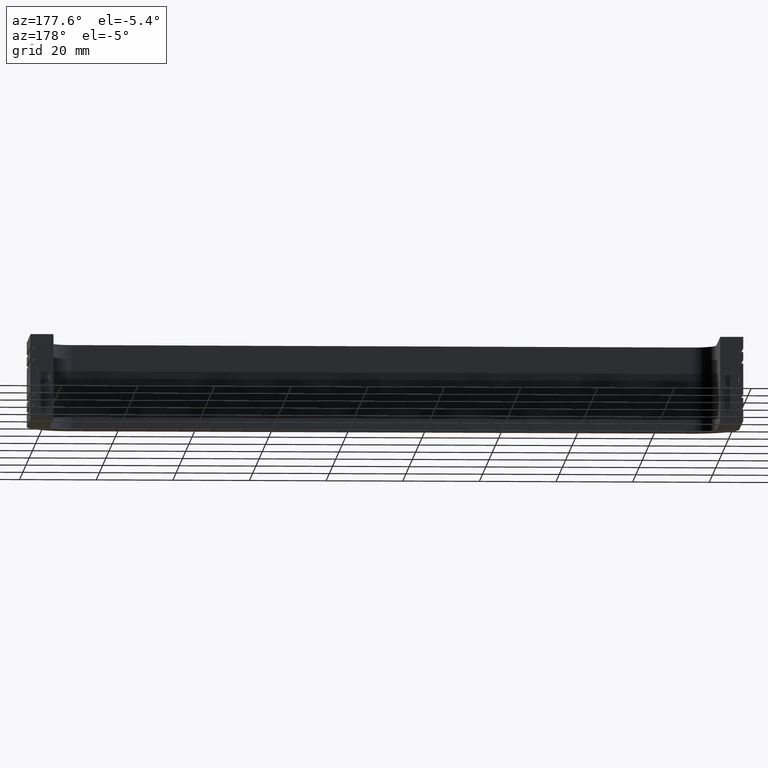
[diagram: clean part render]
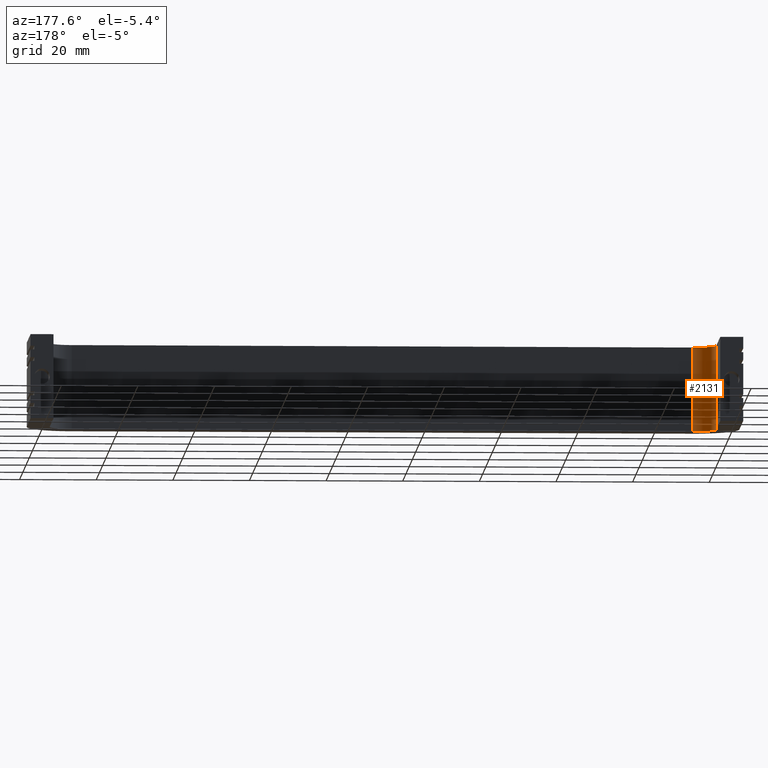
[diagram: same view with one face highlighted and labeled with its STEP entity id]
A machine part, auxiliary view. The second image highlights one B-rep face of the part: STEP entity #2131.
In plain terms, the highlighted face is a freeform B-spline surface patch.
Its self-contained STEP definition (entity closure, byte-faithful):
#1579=CARTESIAN_POINT('',(9.0,-30.0,-11.0));
#1580=VERTEX_POINT('',#1579);
#1586=CARTESIAN_POINT('',(9.0,-30.0,11.0));
#1587=VERTEX_POINT('',#1586);
#1588=CARTESIAN_POINT('',(9.0,-30.0,11.0));
#1589=CARTESIAN_POINT('',(9.0,-30.0,-11.0));
#1590=QUASI_UNIFORM_CURVE('',1,(#1588,#1589),.UNSPECIFIED.,.F.,.U.);
#1591=EDGE_CURVE('',#1587,#1580,#1590,.T.);
#2079=CARTESIAN_POINT('',(9.157061689847241,-29.997943949853340,-11.550000000000001));
#2080=CARTESIAN_POINT('',(9.157061689847241,-29.997943949853340,11.563750000000001));
#2081=CARTESIAN_POINT('',(2.550091196671680,-30.170953560997578,-11.550000000000002));
#2082=CARTESIAN_POINT('',(2.550091196671680,-30.170953560997578,11.563750000000001));
#2083=CARTESIAN_POINT('',(3.014853123715140,-23.578079546244094,-11.550000000000006));
#2084=CARTESIAN_POINT('',(3.014853123715140,-23.578079546244094,11.563750000000002));
#2092=(BOUNDED_SURFACE()B_SPLINE_SURFACE(1,2,((#2079,#2081,#2083),(#2080,#2082,#2084)),.UNSPECIFIED.,.F.,.F.,.U.)B_SPLINE_SURFACE_WITH_KNOTS((2,2),(3,3),(0.0,23.113750000000010),(0.0,10.626854064530180),.UNSPECIFIED.)GEOMETRIC_REPRESENTATION_ITEM()RATIONAL_B_SPLINE_SURFACE(((1.0,0.670944223154768,0.996392648609106),(1.0,0.670944223154768,0.996392648609106)))REPRESENTATION_ITEM('')SURFACE());
#2093=CARTESIAN_POINT('',(3.0,-24.0,-11.0));
#2094=VERTEX_POINT('',#2093);
#2095=CARTESIAN_POINT('',(2.999999999999999,-24.0,-11.0));
#2096=CARTESIAN_POINT('',(2.999999999999999,-30.000000000000004,-11.0));
#2097=CARTESIAN_POINT('',(9.0,-30.0,-11.0));
#2105=(BOUNDED_CURVE()B_SPLINE_CURVE(2,(#2095,#2096,#2097),.UNSPECIFIED.,.F.,.U.)CURVE()GEOMETRIC_REPRESENTATION_ITEM()QUASI_UNIFORM_CURVE()RATIONAL_B_SPLINE_CURVE((1.0,0.707106781186548,1.0))REPRESENTATION_ITEM(''));
#2106=EDGE_CURVE('',#2094,#1580,#2105,.T.);
#2107=ORIENTED_EDGE('',*,*,#2106,.F.);
#2108=CARTESIAN_POINT('',(3.0,-24.0,11.0));
#2109=VERTEX_POINT('',#2108);
#2110=CARTESIAN_POINT('',(3.0,-24.0,11.0));
#2111=CARTESIAN_POINT('',(3.0,-24.0,-11.0));
#2112=QUASI_UNIFORM_CURVE('',1,(#2110,#2111),.UNSPECIFIED.,.F.,.U.);
#2113=EDGE_CURVE('',#2109,#2094,#2112,.T.);
#2114=ORIENTED_EDGE('',*,*,#2113,.F.);
#2115=CARTESIAN_POINT('',(2.999999999999999,-24.0,11.0));
#2116=CARTESIAN_POINT('',(2.999999999999999,-30.000000000000004,11.0));
#2117=CARTESIAN_POINT('',(9.0,-30.0,11.0));
#2125=(BOUNDED_CURVE()B_SPLINE_CURVE(2,(#2115,#2116,#2117),.UNSPECIFIED.,.F.,.U.)CURVE()GEOMETRIC_REPRESENTATION_ITEM()QUASI_UNIFORM_CURVE()RATIONAL_B_SPLINE_CURVE((1.0,0.707106781186548,1.0))REPRESENTATION_ITEM(''));
#2126=EDGE_CURVE('',#2109,#1587,#2125,.T.);
#2127=ORIENTED_EDGE('',*,*,#2126,.T.);
#2128=ORIENTED_EDGE('',*,*,#1591,.T.);
#2129=EDGE_LOOP('',(#2107,#2114,#2127,#2128));
#2130=FACE_OUTER_BOUND('',#2129,.T.);
#2131=ADVANCED_FACE('',(#2130),#2092,.F.);